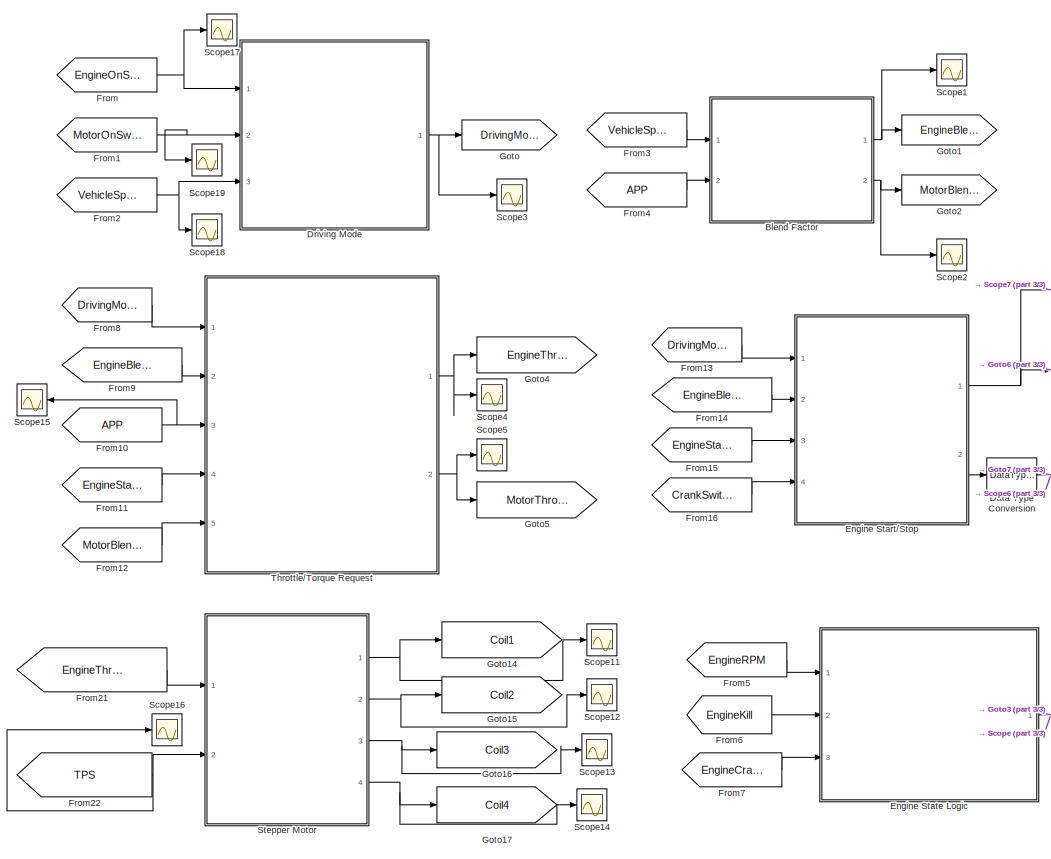
[diagram: root canvas - part 1/3, center side, full height]
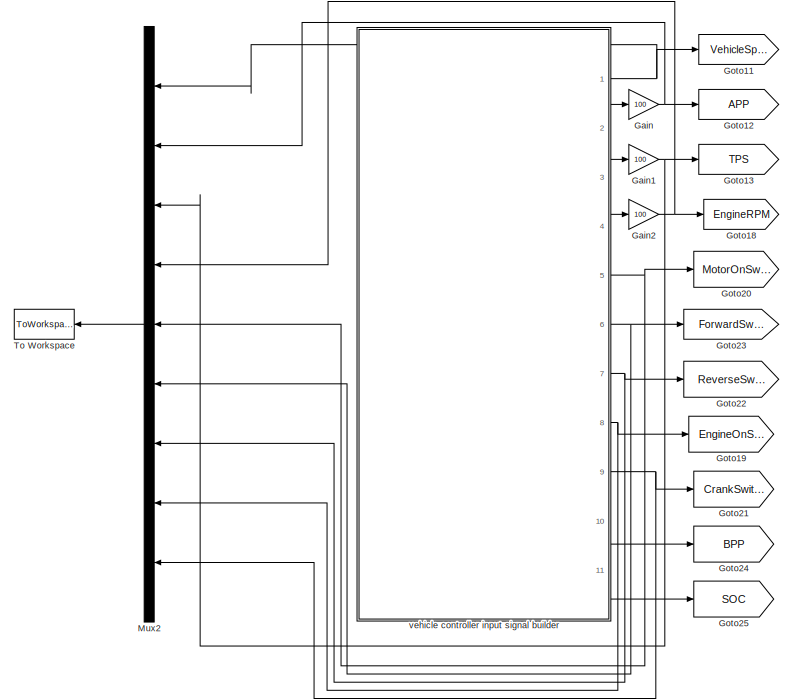
[diagram: root canvas - part 2/3, left side, full height]
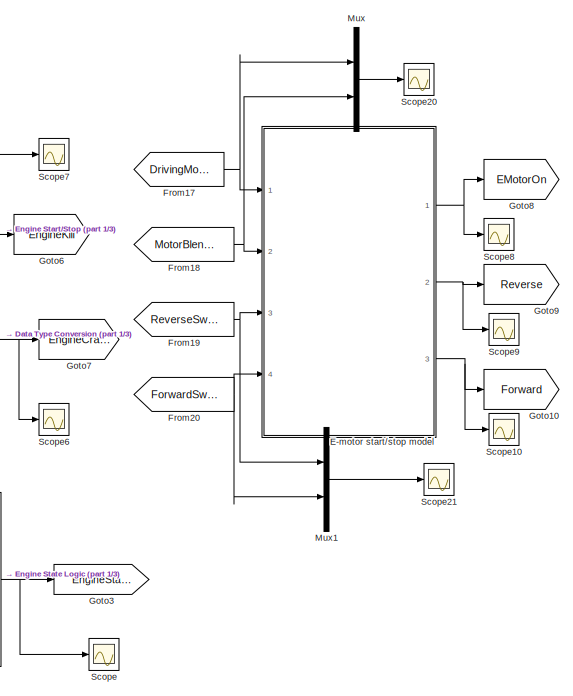
[diagram: root canvas - part 3/3, right side, full height]
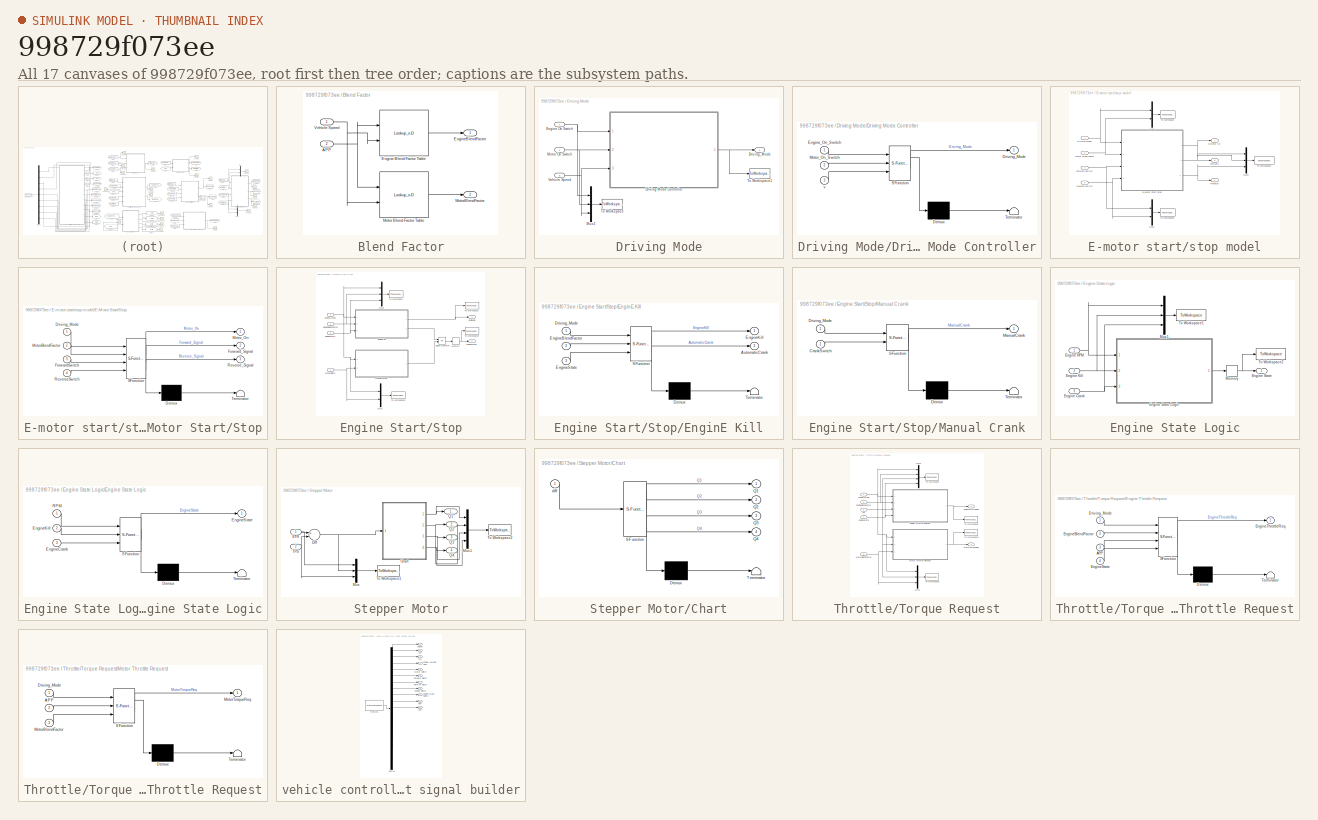
[diagram: thumbnail index - all 17 canvases of the model, root first then tree order]
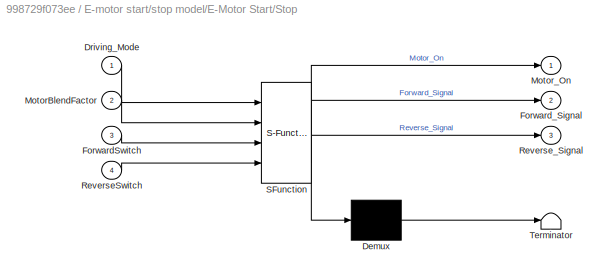
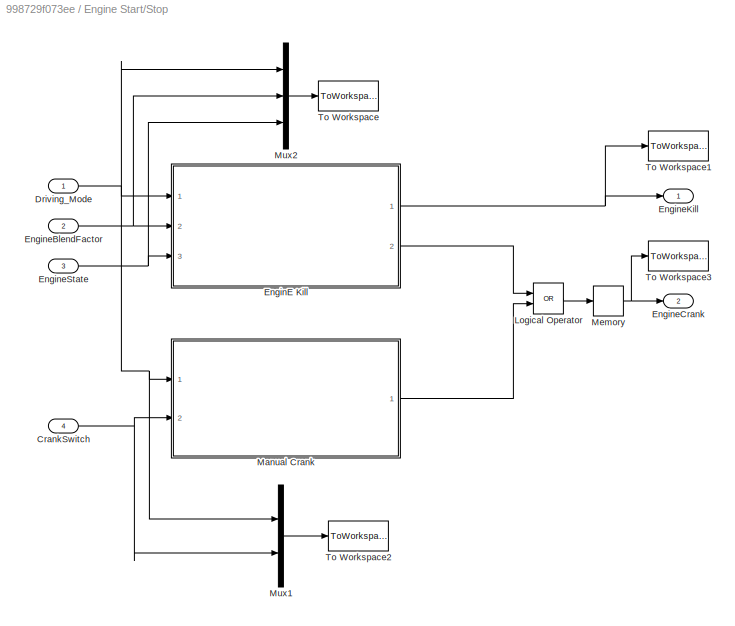
MODEL slx_998729f073ee
KIND model
CONFIG AbsTol = auto
CONFIG FixedStep = 0.1
CONFIG MaxStep = auto
CONFIG MinStep = auto
CONFIG RelTol = 1e-3
CONFIG SampleTimeConstraint = Unconstrained
CONFIG Solver = ode4
CONFIG SolverMode = Auto
CONFIG SolverName = ode4
CONFIG StartTime = 0.0
CONFIG StopTime = 200
BLOCK [SubSystem] Blend Factor
  Ports = [2, 2]
  RequestExecContextInheritance = off
  Variant = off
BLOCK [Inport] Blend Factor/APP
  IconDisplay = Port number
  Port = 2
BLOCK [Lookup_n-D] Blend Factor/Engine Blend Factor Table
  BreakpointsForDimension1 = v
  BreakpointsForDimension2 = x
  InternalRulePriority = Speed
  Ports = [2, 1]
  RndMeth = Simplest
  Table = engineblendfactormap
BLOCK [Outport] Blend Factor/EngineBlendFactor
  IconDisplay = Port number
BLOCK [Lookup_n-D] Blend Factor/Motor Blend Factor Table
  BreakpointsForDimension1 = v
  BreakpointsForDimension2 = x
  InternalRulePriority = Speed
  Ports = [2, 1]
  RndMeth = Simplest
  Table = motorblendfactormap
BLOCK [Outport] Blend Factor/MotorBlendFactor
  IconDisplay = Port number
  Port = 2
BLOCK [Inport] Blend Factor/Vehicle Speed
  IconDisplay = Port number
BLOCK [DataTypeConversion] Data Type Conversion
  OutDataTypeStr = double
  RndMeth = Floor
  SaturateOnIntegerOverflow = off
BLOCK [SubSystem] Driving Mode
  Ports = [3, 1]
  RequestExecContextInheritance = off
  Variant = off
BLOCK [SubSystem] Driving Mode/Driving Mode Controller
  ErrorFcn = Stateflow.Translate.translate
  PermitHierarchicalResolution = ExplicitOnly
  Ports = [3, 1]
  RequestExecContextInheritance = off
  SFBlockType = Chart
  TreatAsAtomicUnit = on
  Variant = off
BLOCK [Demux] Driving Mode/Driving Mode Controller/ Demux 
  Outputs = 1
  Ports = [1, 1]
BLOCK [S-Function] Driving Mode/Driving Mode Controller/ SFunction 
  EnableBusSupport = on
  FunctionName = sf_sfun
  PortCounts = [3 2]
  Ports = [3, 2]
  SFunctionDeploymentMode = off
  Tag = Stateflow S-Function UnmodifiedSimulinkModel 3
BLOCK [Terminator] Driving Mode/Driving Mode Controller/ Terminator 
BLOCK [Outport] Driving Mode/Driving Mode Controller/Driving_Mode
  IconDisplay = Port number
BLOCK [Inport] Driving Mode/Driving Mode Controller/Engine_On_Switch
  IconDisplay = Port number
BLOCK [Inport] Driving Mode/Driving Mode Controller/Motor_On_Switch
  IconDisplay = Port number
  Port = 2
BLOCK [Inport] Driving Mode/Driving Mode Controller/v
  IconDisplay = Port number
  Port = 3
BLOCK [Outport] Driving Mode/Driving_Mode
  IconDisplay = Port number
BLOCK [Inport] Driving Mode/Engine On Switch
  IconDisplay = Port number
BLOCK [Inport] Driving Mode/Motor On Switch
  IconDisplay = Port number
  Port = 2
BLOCK [Mux] Driving Mode/Mux2
  DisplayOption = bar
  Inputs = 3
  Ports = [3, 1]
BLOCK [ToWorkspace] Driving Mode/To Workspace
  FixptAsFi = on
  MaxDataPoints = inf
  Ports = [1]
  SampleTime = -1
  Save2DSignal = 3-D array (concatenate along third dimension)
  SaveFormat = Structure With Time
  VariableName = DM_Inputs
BLOCK [ToWorkspace] Driving Mode/To Workspace1
  FixptAsFi = on
  MaxDataPoints = inf
  Ports = [1]
  SampleTime = -1
  Save2DSignal = 3-D array (concatenate along third dimension)
  SaveFormat = Structure With Time
  VariableName = DM_Output
BLOCK [Inport] Driving Mode/Vehicle Speed
  IconDisplay = Port number
  Port = 3
BLOCK [SubSystem] E-motor start//stop model
  Ports = [4, 3]
  RequestExecContextInheritance = off
  Variant = off
BLOCK [Inport] E-motor start//stop model/Driving Mode
  IconDisplay = Port number
BLOCK [SubSystem] E-motor start//stop model/E-Motor Start//Stop
  ErrorFcn = Stateflow.Translate.translate
  PermitHierarchicalResolution = ExplicitOnly
  Ports = [4, 3]
  RequestExecContextInheritance = off
  SFBlockType = Chart
  TreatAsAtomicUnit = on
  Variant = off
BLOCK [Demux] E-motor start//stop model/E-Motor Start//Stop/ Demux 
  Outputs = 1
  Ports = [1, 1]
BLOCK [S-Function] E-motor start//stop model/E-Motor Start//Stop/ SFunction 
  EnableBusSupport = on
  FunctionName = sf_sfun
  PortCounts = [4 4]
  Ports = [4, 4]
  SFunctionDeploymentMode = off
  Tag = Stateflow S-Function UnmodifiedSimulinkModel 7
BLOCK [Terminator] E-motor start//stop model/E-Motor Start//Stop/ Terminator 
BLOCK [Inport] E-motor start//stop model/E-Motor Start//Stop/Driving_Mode
  IconDisplay = Port number
BLOCK [Inport] E-motor start//stop model/E-Motor Start//Stop/ForwardSwitch
  IconDisplay = Port number
  Port = 3
BLOCK [Outport] E-motor start//stop model/E-Motor Start//Stop/Forward_Signal
  IconDisplay = Port number
  Port = 2
BLOCK [Inport] E-motor start//stop model/E-Motor Start//Stop/MotorBlendFactor
  IconDisplay = Port number
  Port = 2
BLOCK [Outport] E-motor start//stop model/E-Motor Start//Stop/Motor_On
  IconDisplay = Port number
BLOCK [Inport] E-motor start//stop model/E-Motor Start//Stop/ReverseSwitch
  IconDisplay = Port number
  Port = 4
BLOCK [Outport] E-motor start//stop model/E-Motor Start//Stop/Reverse_Signal
  IconDisplay = Port number
  Port = 3
BLOCK [Outport] E-motor start//stop model/E-motor On
  IconDisplay = Port number
BLOCK [Outport] E-motor start//stop model/Forward
  IconDisplay = Port number
  Port = 3
BLOCK [Inport] E-motor start//stop model/Forward Switch
  IconDisplay = Port number
  Port = 4
BLOCK [Inport] E-motor start//stop model/Motor Blend Factor
  IconDisplay = Port number
  Port = 2
BLOCK [Mux] E-motor start//stop model/Mux1
  DisplayOption = bar
  Inputs = 2
  Ports = [2, 1]
BLOCK [Mux] E-motor start//stop model/Mux2
  DisplayOption = bar
  Inputs = 2
  Ports = [2, 1]
BLOCK [Mux] E-motor start//stop model/Mux3
  DisplayOption = bar
  Inputs = 3
  Ports = [3, 1]
BLOCK [Outport] E-motor start//stop model/Reverse
  IconDisplay = Port number
  Port = 2
BLOCK [Inport] E-motor start//stop model/Reverse Switch
  IconDisplay = Port number
  Port = 3
BLOCK [ToWorkspace] E-motor start//stop model/To Workspace
  FixptAsFi = on
  MaxDataPoints = inf
  Ports = [1]
  SampleTime = -1
  Save2DSignal = 3-D array (concatenate along third dimension)
  SaveFormat = Structure With Time
  VariableName = MSS_Inputs
BLOCK [ToWorkspace] E-motor start//stop model/To Workspace1
  FixptAsFi = on
  MaxDataPoints = inf
  Ports = [1]
  SampleTime = -1
  Save2DSignal = 3-D array (concatenate along third dimension)
  SaveFormat = Structure With Time
  VariableName = MSS_Switch
BLOCK [ToWorkspace] E-motor start//stop model/To Workspace2
  FixptAsFi = on
  MaxDataPoints = inf
  Ports = [1]
  SampleTime = -1
  Save2DSignal = 3-D array (concatenate along third dimension)
  SaveFormat = Structure With Time
  VariableName = MSS_Outputs
BLOCK [SubSystem] Engine Start//Stop
  Ports = [4, 2]
  RequestExecContextInheritance = off
  Variant = off
BLOCK [Inport] Engine Start//Stop/CrankSwitch
  IconDisplay = Port number
  Port = 4
BLOCK [Inport] Engine Start//Stop/Driving_Mode
  IconDisplay = Port number
BLOCK [SubSystem] Engine Start//Stop/EnginE Kill
  ErrorFcn = Stateflow.Translate.translate
  PermitHierarchicalResolution = ExplicitOnly
  Ports = [3, 2]
  RequestExecContextInheritance = off
  SFBlockType = Chart
  TreatAsAtomicUnit = on
  Variant = off
BLOCK [Demux] Engine Start//Stop/EnginE Kill/ Demux 
  Outputs = 1
  Ports = [1, 1]
BLOCK [S-Function] Engine Start//Stop/EnginE Kill/ SFunction 
  EnableBusSupport = on
  FunctionName = sf_sfun
  PortCounts = [3 3]
  Ports = [3, 3]
  SFunctionDeploymentMode = off
  Tag = Stateflow S-Function UnmodifiedSimulinkModel 5
BLOCK [Terminator] Engine Start//Stop/EnginE Kill/ Terminator 
BLOCK [Outport] Engine Start//Stop/EnginE Kill/AutomaticCrank
  IconDisplay = Port number
  Port = 2
BLOCK [Inport] Engine Start//Stop/EnginE Kill/Driving_Mode
  IconDisplay = Port number
BLOCK [Inport] Engine Start//Stop/EnginE Kill/EngineBlendFactor
  IconDisplay = Port number
  Port = 2
BLOCK [Outport] Engine Start//Stop/EnginE Kill/EngineKill
  IconDisplay = Port number
BLOCK [Inport] Engine Start//Stop/EnginE Kill/EngineState
  IconDisplay = Port number
  Port = 3
BLOCK [Inport] Engine Start//Stop/EngineBlendFactor
  IconDisplay = Port number
  Port = 2
BLOCK [Outport] Engine Start//Stop/EngineCrank
  IconDisplay = Port number
  Port = 2
BLOCK [Outport] Engine Start//Stop/EngineKill
  IconDisplay = Port number
BLOCK [Inport] Engine Start//Stop/EngineState
  IconDisplay = Port number
  Port = 3
BLOCK [Logic] Engine Start//Stop/Logical Operator
  AllPortsSameDT = off
  Operator = OR
  OutDataTypeStr = boolean
  Ports = [2, 1]
BLOCK [SubSystem] Engine Start//Stop/Manual Crank
  ErrorFcn = Stateflow.Translate.translate
  PermitHierarchicalResolution = ExplicitOnly
  Ports = [2, 1]
  RequestExecContextInheritance = off
  SFBlockType = Chart
  TreatAsAtomicUnit = on
  Variant = off
BLOCK [Demux] Engine Start//Stop/Manual Crank/ Demux 
  Outputs = 1
  Ports = [1, 1]
BLOCK [S-Function] Engine Start//Stop/Manual Crank/ SFunction 
  EnableBusSupport = on
  FunctionName = sf_sfun
  PortCounts = [2 2]
  Ports = [2, 2]
  SFunctionDeploymentMode = off
  Tag = Stateflow S-Function UnmodifiedSimulinkModel 6
BLOCK [Terminator] Engine Start//Stop/Manual Crank/ Terminator 
BLOCK [Inport] Engine Start//Stop/Manual Crank/CrankSwitch
  IconDisplay = Port number
  Port = 2
BLOCK [Inport] Engine Start//Stop/Manual Crank/Driving_Mode
  IconDisplay = Port number
BLOCK [Outport] Engine Start//Stop/Manual Crank/ManualCrank
  IconDisplay = Port number
BLOCK [Memory] Engine Start//Stop/Memory
  X0 = 1
BLOCK [Mux] Engine Start//Stop/Mux1
  DisplayOption = bar
  Inputs = 2
  Ports = [2, 1]
BLOCK [Mux] Engine Start//Stop/Mux2
  DisplayOption = bar
  Inputs = 3
  Ports = [3, 1]
BLOCK [ToWorkspace] Engine Start//Stop/To Workspace
  FixptAsFi = on
  MaxDataPoints = inf
  Ports = [1]
  SampleTime = -1
  Save2DSignal = 3-D array (concatenate along third dimension)
  SaveFormat = Structure With Time
  VariableName = EK_Inputs
BLOCK [ToWorkspace] Engine Start//Stop/To Workspace1
  FixptAsFi = on
  MaxDataPoints = inf
  Ports = [1]
  SampleTime = -1
  Save2DSignal = 3-D array (concatenate along third dimension)
  SaveFormat = Structure With Time
  VariableName = EK_Output
BLOCK [ToWorkspace] Engine Start//Stop/To Workspace2
  FixptAsFi = on
  MaxDataPoints = inf
  Ports = [1]
  SampleTime = -1
  Save2DSignal = 3-D array (concatenate along third dimension)
  SaveFormat = Structure With Time
  VariableName = MC_Inputs
BLOCK [ToWorkspace] Engine Start//Stop/To Workspace3
  FixptAsFi = on
  MaxDataPoints = inf
  Ports = [1]
  SampleTime = -1
  Save2DSignal = 3-D array (concatenate along third dimension)
  SaveFormat = Structure With Time
  VariableName = MC_Output
BLOCK [SubSystem] Engine State Logic
  Ports = [3, 1]
  RequestExecContextInheritance = off
  Variant = off
BLOCK [Inport] Engine State Logic/Engine Crank
  IconDisplay = Port number
  Port = 3
BLOCK [Inport] Engine State Logic/Engine Kill
  IconDisplay = Port number
  Port = 2
BLOCK [Inport] Engine State Logic/Engine RPM
  IconDisplay = Port number
BLOCK [Outport] Engine State Logic/Engine State
  IconDisplay = Port number
BLOCK [SubSystem] Engine State Logic/Engine State Logic
  ErrorFcn = Stateflow.Translate.translate
  PermitHierarchicalResolution = ExplicitOnly
  Ports = [3, 1]
  RequestExecContextInheritance = off
  SFBlockType = Chart
  TreatAsAtomicUnit = on
  Variant = off
BLOCK [Demux] Engine State Logic/Engine State Logic/ Demux 
  Outputs = 1
  Ports = [1, 1]
BLOCK [S-Function] Engine State Logic/Engine State Logic/ SFunction 
  EnableBusSupport = on
  FunctionName = sf_sfun
  PortCounts = [3 2]
  Ports = [3, 2]
  SFunctionDeploymentMode = off
  Tag = Stateflow S-Function UnmodifiedSimulinkModel 1
BLOCK [Terminator] Engine State Logic/Engine State Logic/ Terminator 
BLOCK [Inport] Engine State Logic/Engine State Logic/EngineCrank
  IconDisplay = Port number
  Port = 3
BLOCK [Inport] Engine State Logic/Engine State Logic/EngineKill
  IconDisplay = Port number
  Port = 2
BLOCK [Outport] Engine State Logic/Engine State Logic/EngineState
  IconDisplay = Port number
BLOCK [Inport] Engine State Logic/Engine State Logic/RPM
  IconDisplay = Port number
BLOCK [Memory] Engine State Logic/Memory
  X0 = 1
BLOCK [Mux] Engine State Logic/Mux1
  DisplayOption = bar
  Inputs = 3
  Ports = [3, 1]
BLOCK [ToWorkspace] Engine State Logic/To Workspace1
  FixptAsFi = on
  MaxDataPoints = inf
  Ports = [1]
  SampleTime = -1
  Save2DSignal = 3-D array (concatenate along third dimension)
  SaveFormat = Structure With Time
  VariableName = ES_Inputs
BLOCK [ToWorkspace] Engine State Logic/To Workspace2
  FixptAsFi = on
  MaxDataPoints = inf
  Ports = [1]
  SampleTime = -1
  Save2DSignal = 3-D array (concatenate along third dimension)
  SaveFormat = Structure With Time
  VariableName = ES_Output
BLOCK [From] From
  GotoTag = EngineOnSwitch
  IconDisplay = Tag and signal name
BLOCK [From] From1
  GotoTag = MotorOnSwitch
  IconDisplay = Tag and signal name
BLOCK [From] From10
  GotoTag = APP
  IconDisplay = Tag and signal name
BLOCK [From] From11
  GotoTag = EngineState
  TagVisibility = global
BLOCK [From] From12
  GotoTag = MotorBlendFactor
  TagVisibility = global
BLOCK [From] From13
  GotoTag = DrivingMode
  TagVisibility = global
BLOCK [From] From14
  GotoTag = EngineBlendFactor
  TagVisibility = global
BLOCK [From] From15
  GotoTag = EngineState
  TagVisibility = global
BLOCK [From] From16
  GotoTag = CrankSwitch
  IconDisplay = Tag and signal name
BLOCK [From] From17
  GotoTag = DrivingMode
  TagVisibility = global
BLOCK [From] From18
  GotoTag = MotorBlendFactor
  TagVisibility = global
BLOCK [From] From19
  GotoTag = ReverseSwitch
  IconDisplay = Tag and signal name
BLOCK [From] From2
  GotoTag = VehicleSpeed
  IconDisplay = Tag and signal name
BLOCK [From] From20
  GotoTag = ForwardSwitch
  IconDisplay = Tag and signal name
BLOCK [From] From21
  GotoTag = EngineThrottleReq
  TagVisibility = global
BLOCK [From] From22
  GotoTag = TPS
  IconDisplay = Tag and signal name
BLOCK [From] From3
  GotoTag = VehicleSpeed
  IconDisplay = Tag and signal name
BLOCK [From] From4
  GotoTag = APP
  IconDisplay = Tag and signal name
BLOCK [From] From5
  GotoTag = EngineRPM
  IconDisplay = Tag and signal name
BLOCK [From] From6
  GotoTag = EngineKill
BLOCK [From] From7
  GotoTag = EngineCrank
  IconDisplay = Tag and signal name
BLOCK [From] From8
  GotoTag = DrivingMode
  TagVisibility = global
BLOCK [From] From9
  GotoTag = EngineBlendFactor
  TagVisibility = global
BLOCK [Gain] Gain
  Gain = 100
  OutDataTypeStr = Inherit: Inherit via internal rule
  ParamDataTypeStr = Inherit: Inherit via internal rule
  SaturateOnIntegerOverflow = off
BLOCK [Gain] Gain1
  Gain = 100
  OutDataTypeStr = Inherit: Inherit via internal rule
  ParamDataTypeStr = Inherit: Inherit via internal rule
  SaturateOnIntegerOverflow = off
BLOCK [Gain] Gain2
  Gain = 100
  OutDataTypeStr = Inherit: Inherit via internal rule
  ParamDataTypeStr = Inherit: Inherit via internal rule
  SaturateOnIntegerOverflow = off
BLOCK [Goto] Goto
  GotoTag = DrivingMode
  TagVisibility = global
BLOCK [Goto] Goto1
  GotoTag = EngineBlendFactor
  TagVisibility = global
BLOCK [Goto] Goto10
  GotoTag = Forward
BLOCK [Goto] Goto11
  GotoTag = VehicleSpeed
BLOCK [Goto] Goto12
  GotoTag = APP
BLOCK [Goto] Goto13
  GotoTag = TPS
BLOCK [Goto] Goto14
  GotoTag = Coil1
  TagVisibility = global
BLOCK [Goto] Goto15
  GotoTag = Coil2
  TagVisibility = global
BLOCK [Goto] Goto16
  GotoTag = Coil3
  TagVisibility = global
BLOCK [Goto] Goto17
  GotoTag = Coil4
  TagVisibility = global
BLOCK [Goto] Goto18
  GotoTag = EngineRPM
BLOCK [Goto] Goto19
  GotoTag = EngineOnSwitch
BLOCK [Goto] Goto2
  GotoTag = MotorBlendFactor
  TagVisibility = global
BLOCK [Goto] Goto20
  GotoTag = MotorOnSwitch
BLOCK [Goto] Goto21
  GotoTag = CrankSwitch
BLOCK [Goto] Goto22
  GotoTag = ReverseSwitch
BLOCK [Goto] Goto23
  GotoTag = ForwardSwitch
BLOCK [Goto] Goto24
  GotoTag = BPP
BLOCK [Goto] Goto25
  GotoTag = SOC
BLOCK [Goto] Goto3
  GotoTag = EngineState
  TagVisibility = global
BLOCK [Goto] Goto4
  GotoTag = EngineThrottleReq
  TagVisibility = global
BLOCK [Goto] Goto5
  GotoTag = MotorThrottleReq
  TagVisibility = global
BLOCK [Goto] Goto6
  GotoTag = EngineKill
BLOCK [Goto] Goto7
  GotoTag = EngineCrank
BLOCK [Goto] Goto8
  GotoTag = EMotorOn
BLOCK [Goto] Goto9
  GotoTag = Reverse
BLOCK [Mux] Mux
  DisplayOption = bar
  Inputs = 2
  Ports = [2, 1]
BLOCK [Mux] Mux1
  DisplayOption = bar
  Inputs = 2
  Ports = [2, 1]
BLOCK [Mux] Mux2
  DisplayOption = bar
  Inputs = 9
  Ports = [9, 1]
BLOCK [Scope] Scope
  Ports = [1]
  ScopeSpecificationString = Simulink.scopes.TimeScopeBlockCfg('CurrentConfiguration', extmgr.ConfigurationSet(extmgr.Configuration('Core','General UI',true),extmgr.Configuration('Core','Source UI',true),extmgr.Configuration('Sources','WiredSimulink',true),extmgr.Configuration('Visuals','Time Domain',true,'SerializedDisplays',{struct('MinYLimReal','0.5','MaxYLimReal','5.5','YLabelReal','','MinYLimMag','0.5','MaxYLimMag','5.5'...<+1400ch>
BLOCK [Scope] Scope1
  Ports = [1]
  ScopeSpecificationString = Simulink.scopes.TimeScopeBlockCfg('CurrentConfiguration', extmgr.ConfigurationSet(extmgr.Configuration('Core','General UI',true),extmgr.Configuration('Core','Source UI',true),extmgr.Configuration('Sources','WiredSimulink',true,'DataLoggingVariableName','ScopeData1'),extmgr.Configuration('Visuals','Time Domain',true,'SerializedDisplays',{struct('MinYLimReal','-0.125','MaxYLimReal','1.125','YLabelRe...<+1403ch>
BLOCK [Scope] Scope10
  Ports = [1]
  ScopeSpecificationString = Simulink.scopes.TimeScopeBlockCfg('CurrentConfiguration', extmgr.ConfigurationSet(extmgr.Configuration('Core','General UI',true),extmgr.Configuration('Core','Source UI',true),extmgr.Configuration('Sources','WiredSimulink',true,'DataLoggingVariableName','ScopeData10'),extmgr.Configuration('Visuals','Time Domain',true,'SerializedDisplays',{struct('MinYLimReal','-0.125','MaxYLimReal','1.125','YLabelR...<+1442ch>
BLOCK [Scope] Scope11
  Ports = [1]
  ScopeSpecificationString = Simulink.scopes.TimeScopeBlockCfg('CurrentConfiguration', extmgr.ConfigurationSet(extmgr.Configuration('Core','General UI',true),extmgr.Configuration('Core','Source UI',true),extmgr.Configuration('Sources','WiredSimulink',true,'DataLoggingVariableName','ScopeData11'),extmgr.Configuration('Visuals','Time Domain',true,'SerializedDisplays',{struct('MinYLimReal','-0.125','MaxYLimReal','1.125','YLabelR...<+1444ch>
BLOCK [Scope] Scope12
  Ports = [1]
  ScopeSpecificationString = Simulink.scopes.TimeScopeBlockCfg('CurrentConfiguration', extmgr.ConfigurationSet(extmgr.Configuration('Core','General UI',true),extmgr.Configuration('Core','Source UI',true),extmgr.Configuration('Sources','WiredSimulink',true,'DataLoggingVariableName','ScopeData12'),extmgr.Configuration('Visuals','Time Domain',true,'SerializedDisplays',{struct('MinYLimReal','-0.125','MaxYLimReal','1.125','YLabelR...<+1404ch>
BLOCK [Scope] Scope13
  Ports = [1]
  ScopeSpecificationString = Simulink.scopes.TimeScopeBlockCfg('CurrentConfiguration', extmgr.ConfigurationSet(extmgr.Configuration('Core','General UI',true),extmgr.Configuration('Core','Source UI',true),extmgr.Configuration('Sources','WiredSimulink',true,'DataLoggingVariableName','ScopeData13'),extmgr.Configuration('Visuals','Time Domain',true,'SerializedDisplays',{struct('MinYLimReal','-0.125','MaxYLimReal','1.125','YLabelR...<+1404ch>
BLOCK [Scope] Scope14
  Ports = [1]
  ScopeSpecificationString = Simulink.scopes.TimeScopeBlockCfg('CurrentConfiguration', extmgr.ConfigurationSet(extmgr.Configuration('Core','General UI',true),extmgr.Configuration('Core','Source UI',true),extmgr.Configuration('Sources','WiredSimulink',true,'DataLoggingVariableName','ScopeData14'),extmgr.Configuration('Visuals','Time Domain',true,'SerializedDisplays',{struct('MinYLimReal','-0.125','MaxYLimReal','1.125','YLabelR...<+1419ch>
BLOCK [Scope] Scope15
  Ports = [1]
  ScopeSpecificationString = Simulink.scopes.TimeScopeBlockCfg('CurrentConfiguration', extmgr.ConfigurationSet(extmgr.Configuration('Core','General UI',true),extmgr.Configuration('Core','Source UI',true),extmgr.Configuration('Sources','WiredSimulink',true,'DataLoggingVariableName','ScopeData1'),extmgr.Configuration('Visuals','Time Domain',true,'SerializedDisplays',{struct('MinYLimReal','-10.00000','MaxYLimReal','90.00000','YL...<+1424ch>
BLOCK [Scope] Scope16
  Ports = [1]
  ScopeSpecificationString = Simulink.scopes.TimeScopeBlockCfg('CurrentConfiguration', extmgr.ConfigurationSet(extmgr.Configuration('Core','General UI',true),extmgr.Configuration('Core','Source UI',true),extmgr.Configuration('Sources','WiredSimulink',true,'DataLoggingVariableName','ScopeData2'),extmgr.Configuration('Visuals','Time Domain',true,'SerializedDisplays',{struct('MinYLimReal','-10.00000','MaxYLimReal','90.00000','YL...<+1370ch>
BLOCK [Scope] Scope17
  Ports = [1]
  ScopeSpecificationString = Simulink.scopes.TimeScopeBlockCfg('CurrentConfiguration', extmgr.ConfigurationSet(extmgr.Configuration('Core','General UI',true),extmgr.Configuration('Core','Source UI',true),extmgr.Configuration('Sources','WiredSimulink',true,'DataLoggingVariableName','ScopeData3'),extmgr.Configuration('Visuals','Time Domain',true,'SerializedDisplays',{struct('MinYLimReal','-0.125','MaxYLimReal','1.125','YLabelRe...<+1417ch>
BLOCK [Scope] Scope18
  Ports = [1]
  ScopeSpecificationString = Simulink.scopes.TimeScopeBlockCfg('CurrentConfiguration', extmgr.ConfigurationSet(extmgr.Configuration('Core','General UI',true),extmgr.Configuration('Core','Source UI',true),extmgr.Configuration('Sources','WiredSimulink',true,'DataLoggingVariableName','ScopeData4'),extmgr.Configuration('Visuals','Time Domain',true,'SerializedDisplays',{struct('MinYLimReal','-2.5','MaxYLimReal','22.5','YLabelReal'...<+1380ch>
BLOCK [Scope] Scope19
  Ports = [1]
  ScopeSpecificationString = Simulink.scopes.TimeScopeBlockCfg('CurrentConfiguration', extmgr.ConfigurationSet(extmgr.Configuration('Core','General UI',true),extmgr.Configuration('Core','Source UI',true),extmgr.Configuration('Sources','WiredSimulink',true,'DataLoggingVariableName','ScopeData5'),extmgr.Configuration('Visuals','Time Domain',true,'SerializedDisplays',{struct('MinYLimReal','-0.125','MaxYLimReal','1.125','YLabelRe...<+1417ch>
BLOCK [Scope] Scope2
  Ports = [1]
  ScopeSpecificationString = Simulink.scopes.TimeScopeBlockCfg('CurrentConfiguration', extmgr.ConfigurationSet(extmgr.Configuration('Core','General UI',true),extmgr.Configuration('Core','Source UI',true),extmgr.Configuration('Sources','WiredSimulink',true,'DataLoggingVariableName','ScopeData2'),extmgr.Configuration('Visuals','Time Domain',true,'SerializedDisplays',{struct('MinYLimReal','-0.125','MaxYLimReal','1.125','YLabelRe...<+1416ch>
BLOCK [Scope] Scope20
  Ports = [1]
  ScopeSpecificationString = Simulink.scopes.TimeScopeBlockCfg('CurrentConfiguration', extmgr.ConfigurationSet(extmgr.Configuration('Core','General UI',true),extmgr.Configuration('Core','Source UI',true),extmgr.Configuration('Sources','WiredSimulink',true,'DataLoggingVariableName','ScopeData6'),extmgr.Configuration('Visuals','Time Domain',true,'SerializedDisplays',{struct('MinYLimReal','-0.25','MaxYLimReal','2.25','YLabelReal...<+1425ch>
BLOCK [Scope] Scope21
  Ports = [1]
  ScopeSpecificationString = Simulink.scopes.TimeScopeBlockCfg('CurrentConfiguration', extmgr.ConfigurationSet(extmgr.Configuration('Core','General UI',true),extmgr.Configuration('Core','Source UI',true),extmgr.Configuration('Sources','WiredSimulink',true,'DataLoggingVariableName','ScopeData7'),extmgr.Configuration('Visuals','Time Domain',true,'SerializedDisplays',{struct('MinYLimReal','-0.125','MaxYLimReal','1.125','YLabelRe...<+1459ch>
BLOCK [Scope] Scope3
  Ports = [1]
  ScopeSpecificationString = Simulink.scopes.TimeScopeBlockCfg('CurrentConfiguration', extmgr.ConfigurationSet(extmgr.Configuration('Core','General UI',true),extmgr.Configuration('Core','Source UI',true),extmgr.Configuration('Sources','WiredSimulink',true,'DataLoggingVariableName','ScopeData3'),extmgr.Configuration('Visuals','Time Domain',true,'SerializedDisplays',{struct('MinYLimReal','-0.25','MaxYLimReal','2.25','YLabelReal...<+1405ch>
BLOCK [Scope] Scope4
  Ports = [1]
  ScopeSpecificationString = Simulink.scopes.TimeScopeBlockCfg('CurrentConfiguration', extmgr.ConfigurationSet(extmgr.Configuration('Core','General UI',true),extmgr.Configuration('Core','Source UI',true),extmgr.Configuration('Sources','WiredSimulink',true,'DataLoggingVariableName','ScopeData4'),extmgr.Configuration('Visuals','Time Domain',true,'SerializedDisplays',{struct('MinYLimReal','-10.00000','MaxYLimReal','90.00000','YL...<+1490ch>
BLOCK [Scope] Scope5
  Ports = [1]
  ScopeSpecificationString = Simulink.scopes.TimeScopeBlockCfg('CurrentConfiguration', extmgr.ConfigurationSet(extmgr.Configuration('Core','General UI',true),extmgr.Configuration('Core','Source UI',true),extmgr.Configuration('Sources','WiredSimulink',true,'DataLoggingVariableName','ScopeData5'),extmgr.Configuration('Visuals','Time Domain',true,'SerializedDisplays',{struct('MinYLimReal','-6.25','MaxYLimReal','56.25','YLabelRea...<+1438ch>
BLOCK [Scope] Scope6
  Ports = [1]
  ScopeSpecificationString = Simulink.scopes.TimeScopeBlockCfg('CurrentConfiguration', extmgr.ConfigurationSet(extmgr.Configuration('Core','General UI',true),extmgr.Configuration('Core','Source UI',true),extmgr.Configuration('Sources','WiredSimulink',true,'DataLoggingVariableName','ScopeData6'),extmgr.Configuration('Visuals','Time Domain',true,'SerializedDisplays',{struct('MinYLimReal','-0.125','MaxYLimReal','1.125','YLabelRe...<+1439ch>
BLOCK [Scope] Scope7
  Ports = [1]
  ScopeSpecificationString = Simulink.scopes.TimeScopeBlockCfg('CurrentConfiguration', extmgr.ConfigurationSet(extmgr.Configuration('Core','General UI',true),extmgr.Configuration('Core','Source UI',true),extmgr.Configuration('Sources','WiredSimulink',true,'DataLoggingVariableName','ScopeData7','DataLoggingLimitDataPoints',true,'DataLoggingSaveFormat','Array','DataLoggingDecimation','1','DataLoggingDecimateData',true),extmgr.C...<+1555ch>
BLOCK [Scope] Scope8
  Ports = [1]
  ScopeSpecificationString = Simulink.scopes.TimeScopeBlockCfg('CurrentConfiguration', extmgr.ConfigurationSet(extmgr.Configuration('Core','General UI',true),extmgr.Configuration('Core','Source UI',true),extmgr.Configuration('Sources','WiredSimulink',true,'DataLoggingVariableName','ScopeData8'),extmgr.Configuration('Visuals','Time Domain',true,'SerializedDisplays',{struct('MinYLimReal','-0.125','MaxYLimReal','1.125','YLabelRe...<+1435ch>
BLOCK [Scope] Scope9
  Ports = [1]
  ScopeSpecificationString = Simulink.scopes.TimeScopeBlockCfg('CurrentConfiguration', extmgr.ConfigurationSet(extmgr.Configuration('Core','General UI',true),extmgr.Configuration('Core','Source UI',true),extmgr.Configuration('Sources','WiredSimulink',true,'DataLoggingVariableName','ScopeData9'),extmgr.Configuration('Visuals','Time Domain',true,'SerializedDisplays',{struct('MinYLimReal','-0.125','MaxYLimReal','1.125','YLabelRe...<+1441ch>
BLOCK [SubSystem] Stepper Motor
  Ports = [2, 4]
  RequestExecContextInheritance = off
  Variant = off
BLOCK [SubSystem] Stepper Motor/Chart
  ErrorFcn = Stateflow.Translate.translate
  PermitHierarchicalResolution = ExplicitOnly
  Ports = [1, 4]
  RequestExecContextInheritance = off
  SFBlockType = Chart
  TreatAsAtomicUnit = on
  Variant = off
BLOCK [Demux] Stepper Motor/Chart/ Demux 
  Outputs = 1
  Ports = [1, 1]
BLOCK [S-Function] Stepper Motor/Chart/ SFunction 
  EnableBusSupport = on
  FunctionName = sf_sfun
  PortCounts = [1 5]
  Ports = [1, 5]
  SFunctionDeploymentMode = off
  Tag = Stateflow S-Function UnmodifiedSimulinkModel 9
BLOCK [Terminator] Stepper Motor/Chart/ Terminator 
BLOCK [Outport] Stepper Motor/Chart/Q1
  IconDisplay = Port number
BLOCK [Outport] Stepper Motor/Chart/Q2
  IconDisplay = Port number
  Port = 2
BLOCK [Outport] Stepper Motor/Chart/Q3
  IconDisplay = Port number
  Port = 3
BLOCK [Outport] Stepper Motor/Chart/Q4
  IconDisplay = Port number
  Port = 4
BLOCK [Inport] Stepper Motor/Chart/diff
  IconDisplay = Port number
BLOCK [Sum] Stepper Motor/Diff
  InputSameDT = off
  Inputs = +-
  OutDataTypeStr = Inherit: Inherit via internal rule
  Ports = [2, 1]
  SaturateOnIntegerOverflow = off
BLOCK [Inport] Stepper Motor/ETR
  IconDisplay = Port number
BLOCK [Mux] Stepper Motor/Mux
  DisplayOption = bar
  Inputs = 3
  Ports = [3, 1]
BLOCK [Mux] Stepper Motor/Mux1
  DisplayOption = bar
  Ports = [4, 1]
BLOCK [Outport] Stepper Motor/Q1
  IconDisplay = Port number
BLOCK [Outport] Stepper Motor/Q2
  IconDisplay = Port number
  Port = 2
BLOCK [Outport] Stepper Motor/Q3
  IconDisplay = Port number
  Port = 3
BLOCK [Outport] Stepper Motor/Q4
  IconDisplay = Port number
  Port = 4
BLOCK [Inport] Stepper Motor/TPS
  IconDisplay = Port number
  Port = 2
BLOCK [ToWorkspace] Stepper Motor/To Workspace1
  FixptAsFi = on
  MaxDataPoints = inf
  Ports = [1]
  SampleTime = -1
  Save2DSignal = 3-D array (concatenate along third dimension)
  SaveFormat = Structure With Time
  VariableName = SM_Inputs
BLOCK [ToWorkspace] Stepper Motor/To Workspace2
  FixptAsFi = on
  MaxDataPoints = inf
  Ports = [1]
  SampleTime = -1
  Save2DSignal = 3-D array (concatenate along third dimension)
  SaveFormat = Structure With Time
  VariableName = SM_Outputs
BLOCK [SubSystem] Throttle//Torque Request
  Ports = [5, 2]
  RequestExecContextInheritance = off
  Variant = off
BLOCK [Inport] Throttle//Torque Request/APP
  IconDisplay = Port number
  Port = 3
BLOCK [Inport] Throttle//Torque Request/Driving_Mode
  IconDisplay = Port number
BLOCK [SubSystem] Throttle//Torque Request/Engine Throttle Request
  ErrorFcn = Stateflow.Translate.translate
  PermitHierarchicalResolution = ExplicitOnly
  Ports = [4, 1]
  RequestExecContextInheritance = off
  SFBlockType = Chart
  TreatAsAtomicUnit = on
  Variant = off
BLOCK [Demux] Throttle//Torque Request/Engine Throttle Request/ Demux 
  Outputs = 1
  Ports = [1, 1]
BLOCK [S-Function] Throttle//Torque Request/Engine Throttle Request/ SFunction 
  EnableBusSupport = on
  FunctionName = sf_sfun
  PortCounts = [4 2]
  Ports = [4, 2]
  SFunctionDeploymentMode = off
  Tag = Stateflow S-Function UnmodifiedSimulinkModel 2
BLOCK [Terminator] Throttle//Torque Request/Engine Throttle Request/ Terminator 
BLOCK [Inport] Throttle//Torque Request/Engine Throttle Request/APP
  IconDisplay = Port number
  Port = 3
BLOCK [Inport] Throttle//Torque Request/Engine Throttle Request/Driving_Mode
  IconDisplay = Port number
BLOCK [Inport] Throttle//Torque Request/Engine Throttle Request/EngineBlendFactor
  IconDisplay = Port number
  Port = 2
BLOCK [Inport] Throttle//Torque Request/Engine Throttle Request/EngineState
  IconDisplay = Port number
  Port = 4
BLOCK [Outport] Throttle//Torque Request/Engine Throttle Request/EngineThrottleReq
  IconDisplay = Port number
BLOCK [Inport] Throttle//Torque Request/EngineBlendFactor
  IconDisplay = Port number
  Port = 2
BLOCK [Inport] Throttle//Torque Request/EngineState
  IconDisplay = Port number
  Port = 4
BLOCK [Outport] Throttle//Torque Request/EngineThrottleReq
  IconDisplay = Port number
BLOCK [SubSystem] Throttle//Torque Request/Motor Throttle Request
  ErrorFcn = Stateflow.Translate.translate
  PermitHierarchicalResolution = ExplicitOnly
  Ports = [3, 1]
  RequestExecContextInheritance = off
  SFBlockType = Chart
  TreatAsAtomicUnit = on
  Variant = off
BLOCK [Demux] Throttle//Torque Request/Motor Throttle Request/ Demux 
  Outputs = 1
  Ports = [1, 1]
BLOCK [S-Function] Throttle//Torque Request/Motor Throttle Request/ SFunction 
  EnableBusSupport = on
  FunctionName = sf_sfun
  PortCounts = [3 2]
  Ports = [3, 2]
  SFunctionDeploymentMode = off
  Tag = Stateflow S-Function UnmodifiedSimulinkModel 4
BLOCK [Terminator] Throttle//Torque Request/Motor Throttle Request/ Terminator 
BLOCK [Inport] Throttle//Torque Request/Motor Throttle Request/APP
  IconDisplay = Port number
  Port = 2
BLOCK [Inport] Throttle//Torque Request/Motor Throttle Request/Driving_Mode
  IconDisplay = Port number
BLOCK [Inport] Throttle//Torque Request/Motor Throttle Request/MotorBlendFactor
  IconDisplay = Port number
  Port = 3
BLOCK [Outport] Throttle//Torque Request/Motor Throttle Request/MotorTorqueReq
  IconDisplay = Port number
BLOCK [Inport] Throttle//Torque Request/MotorBlendFactor
  IconDisplay = Port number
  Port = 5
BLOCK [Outport] Throttle//Torque Request/MotorTorqueReq
  IconDisplay = Port number
  Port = 2
BLOCK [Mux] Throttle//Torque Request/Mux1
  DisplayOption = bar
  Inputs = 3
  Ports = [3, 1]
BLOCK [Mux] Throttle//Torque Request/Mux2
  DisplayOption = bar
  Ports = [4, 1]
BLOCK [ToWorkspace] Throttle//Torque Request/To Workspace
  FixptAsFi = on
  MaxDataPoints = inf
  Ports = [1]
  SampleTime = -1
  Save2DSignal = 3-D array (concatenate along third dimension)
  SaveFormat = Structure With Time
  VariableName = ETR_Inputs
BLOCK [ToWorkspace] Throttle//Torque Request/To Workspace1
  FixptAsFi = on
  MaxDataPoints = inf
  Ports = [1]
  SampleTime = -1
  Save2DSignal = 3-D array (concatenate along third dimension)
  SaveFormat = Structure With Time
  VariableName = MTR_Inputs
BLOCK [ToWorkspace] Throttle//Torque Request/To Workspace2
  FixptAsFi = on
  MaxDataPoints = inf
  Ports = [1]
  SampleTime = -1
  Save2DSignal = 3-D array (concatenate along third dimension)
  SaveFormat = Structure With Time
  VariableName = ETR_Output
BLOCK [ToWorkspace] Throttle//Torque Request/To Workspace3
  FixptAsFi = on
  MaxDataPoints = inf
  Ports = [1]
  SampleTime = -1
  Save2DSignal = 3-D array (concatenate along third dimension)
  SaveFormat = Structure With Time
  VariableName = MTR_Output
BLOCK [ToWorkspace] To Workspace
  FixptAsFi = on
  MaxDataPoints = inf
  Ports = [1]
  SampleTime = -1
  Save2DSignal = 3-D array (concatenate along third dimension)
  SaveFormat = Structure With Time
  VariableName = Signal_Inputs
BLOCK [SubSystem] vehicle controller input signal builder
  ClipboardFcn = sigbuilder_block('clipboard');
  CloseFcn = sigbuilder_block('close');
  ContinueFcn = sigbuilder_block('continue')
  CopyFcn = sigbuilder_block('copy');
  DeleteFcn = sigbuilder_block('delete');
  LoadFcn = sigbuilder_block('load');
  MaskHideContents = on
  ModelCloseFcn = sigbuilder_block('modelClose');
  NameChangeFcn = sigbuilder_block('namechange');
  OpenFcn = sigbuilder_block('open',[0 30 960 455.5 ]);
  PauseFcn = sigbuilder_block('pause')
  Ports = [0, 11]
  PreSaveFcn = sigbuilder_block('preSave');
  RequestExecContextInheritance = off
  StartFcn = sigbuilder_block('start');
  StopFcn = sigbuilder_block('stop');
  Tag = STV Subsys
  Variant = off
BLOCK [Outport] vehicle controller input signal builder/APP
  IconDisplay = Port number
  Port = 2
  Tag = STV Outport
BLOCK [Outport] vehicle controller input signal builder/BPP
  IconDisplay = Port number
  Port = 10
  Tag = STV Outport
BLOCK [Demux] vehicle controller input signal builder/Demux
  Outputs = 11
  Ports = [1, 11]
  Tag = STV Demux
BLOCK [Outport] vehicle controller input signal builder/Engine Average RPM
  IconDisplay = Port number
  Port = 4
  Tag = STV Outport
BLOCK [Outport] vehicle controller input signal builder/Engine Crank Switch
  IconDisplay = Port number
  Port = 9
  Tag = STV Outport
BLOCK [Outport] vehicle controller input signal builder/Engine Switch
  IconDisplay = Port number
  Port = 8
  Tag = STV Outport
BLOCK [Outport] vehicle controller input signal builder/Forward Switch
  IconDisplay = Port number
  Port = 6
  Tag = STV Outport
BLOCK [FromWorkspace] vehicle controller input signal builder/FromWs
  SampleTime = 0
  Tag = STV FromWs
  VariableName = tuvar
  ZeroCross = on
BLOCK [Outport] vehicle controller input signal builder/Motor Switch
  IconDisplay = Port number
  Port = 5
  Tag = STV Outport
BLOCK [Outport] vehicle controller input signal builder/Reverse Switch
  IconDisplay = Port number
  Port = 7
  Tag = STV Outport
BLOCK [Outport] vehicle controller input signal builder/SOC
  IconDisplay = Port number
  Port = 11
  Tag = STV Outport
BLOCK [Outport] vehicle controller input signal builder/TPS
  IconDisplay = Port number
  Port = 3
  Tag = STV Outport
BLOCK [Outport] vehicle controller input signal builder/Velocity
  IconDisplay = Port number
  Tag = STV Outport
NET Blend Factor/APP:1 -> Blend Factor/Engine Blend Factor Table:1, Blend Factor/Motor Blend Factor Table:1
LINE Blend Factor/Engine Blend Factor Table:1 -> Blend Factor/EngineBlendFactor:1
LINE Blend Factor/Motor Blend Factor Table:1 -> Blend Factor/MotorBlendFactor:1
NET Blend Factor/Vehicle Speed:1 -> Blend Factor/Engine Blend Factor Table:2, Blend Factor/Motor Blend Factor Table:2
NET Blend Factor:1 -> Goto1:1, Scope1:1
NET Blend Factor:2 -> Goto2:1, Scope2:1
NET Data Type Conversion:1 -> Goto7:1, Scope6:1
NET Driving Mode/Driving Mode Controller:1 -> Driving Mode/Driving_Mode:1, Driving Mode/To Workspace1:1
NET Driving Mode/Engine On Switch:1 -> Driving Mode/Driving Mode Controller:1, Driving Mode/Mux2:1
NET Driving Mode/Motor On Switch:1 -> Driving Mode/Driving Mode Controller:2, Driving Mode/Mux2:2
LINE Driving Mode/Mux2:1 -> Driving Mode/To Workspace:1
NET Driving Mode/Vehicle Speed:1 -> Driving Mode/Driving Mode Controller:3, Driving Mode/Mux2:3
NET Driving Mode:1 -> Goto:1, Scope3:1
NET E-motor start//stop model/Driving Mode:1 -> E-motor start//stop model/E-Motor Start//Stop:1, E-motor start//stop model/Mux2:1
NET E-motor start//stop model/E-Motor Start//Stop:1 -> E-motor start//stop model/E-motor On:1, E-motor start//stop model/Mux3:1
NET E-motor start//stop model/E-Motor Start//Stop:2 -> E-motor start//stop model/Forward:1, E-motor start//stop model/Mux3:2
NET E-motor start//stop model/E-Motor Start//Stop:3 -> E-motor start//stop model/Mux3:3, E-motor start//stop model/Reverse:1
NET E-motor start//stop model/Forward Switch:1 -> E-motor start//stop model/E-Motor Start//Stop:3, E-motor start//stop model/Mux1:1
NET E-motor start//stop model/Motor Blend Factor:1 -> E-motor start//stop model/E-Motor Start//Stop:2, E-motor start//stop model/Mux2:2
LINE E-motor start//stop model/Mux1:1 -> E-motor start//stop model/To Workspace1:1
LINE E-motor start//stop model/Mux2:1 -> E-motor start//stop model/To Workspace:1
LINE E-motor start//stop model/Mux3:1 -> E-motor start//stop model/To Workspace2:1
NET E-motor start//stop model/Reverse Switch:1 -> E-motor start//stop model/E-Motor Start//Stop:4, E-motor start//stop model/Mux1:2
NET E-motor start//stop model:1 -> Goto8:1, Scope8:1
NET E-motor start//stop model:2 -> Goto9:1, Scope9:1
NET E-motor start//stop model:3 -> Goto10:1, Scope10:1
NET Engine Start//Stop/CrankSwitch:1 -> Engine Start//Stop/Manual Crank:2, Engine Start//Stop/Mux1:2
NET Engine Start//Stop/Driving_Mode:1 -> Engine Start//Stop/EnginE Kill:1, Engine Start//Stop/Manual Crank:1, Engine Start//Stop/Mux1:1, Engine Start//Stop/Mux2:1
NET Engine Start//Stop/EnginE Kill:1 -> Engine Start//Stop/EngineKill:1, Engine Start//Stop/To Workspace1:1
LINE Engine Start//Stop/EnginE Kill:2 -> Engine Start//Stop/Logical Operator:1
NET Engine Start//Stop/EngineBlendFactor:1 -> Engine Start//Stop/EnginE Kill:2, Engine Start//Stop/Mux2:2
NET Engine Start//Stop/EngineState:1 -> Engine Start//Stop/EnginE Kill:3, Engine Start//Stop/Mux2:3
LINE Engine Start//Stop/Logical Operator:1 -> Engine Start//Stop/Memory:1
LINE Engine Start//Stop/Manual Crank:1 -> Engine Start//Stop/Logical Operator:2
NET Engine Start//Stop/Memory:1 -> Engine Start//Stop/EngineCrank:1, Engine Start//Stop/To Workspace3:1
LINE Engine Start//Stop/Mux1:1 -> Engine Start//Stop/To Workspace2:1
LINE Engine Start//Stop/Mux2:1 -> Engine Start//Stop/To Workspace:1
NET Engine Start//Stop:1 -> Goto6:1, Scope7:1
LINE Engine Start//Stop:2 -> Data Type Conversion:1
NET Engine State Logic/Engine Crank:1 -> Engine State Logic/Engine State Logic:3, Engine State Logic/Mux1:3
NET Engine State Logic/Engine Kill:1 -> Engine State Logic/Engine State Logic:2, Engine State Logic/Mux1:2
NET Engine State Logic/Engine RPM:1 -> Engine State Logic/Engine State Logic:1, Engine State Logic/Mux1:1
LINE Engine State Logic/Engine State Logic:1 -> Engine State Logic/Memory:1
NET Engine State Logic/Memory:1 -> Engine State Logic/Engine State:1, Engine State Logic/To Workspace2:1
LINE Engine State Logic/Mux1:1 -> Engine State Logic/To Workspace1:1
NET Engine State Logic:1 -> Goto3:1, Scope:1
NET From10:1 -> Scope15:1, Throttle//Torque Request:3
LINE From11:1 -> Throttle//Torque Request:4
LINE From12:1 -> Throttle//Torque Request:5
LINE From13:1 -> Engine Start//Stop:1
LINE From14:1 -> Engine Start//Stop:2
LINE From15:1 -> Engine Start//Stop:3
LINE From16:1 -> Engine Start//Stop:4
NET From17:1 -> E-motor start//stop model:1, Mux:1
NET From18:1 -> E-motor start//stop model:2, Mux:2
NET From19:1 -> E-motor start//stop model:3, Mux1:1
NET From1:1 -> Driving Mode:2, Scope19:1
NET From20:1 -> E-motor start//stop model:4, Mux1:2
LINE From21:1 -> Stepper Motor:1
NET From22:1 -> Scope16:1, Stepper Motor:2
NET From2:1 -> Driving Mode:3, Scope18:1
LINE From3:1 -> Blend Factor:1
LINE From4:1 -> Blend Factor:2
LINE From5:1 -> Engine State Logic:1
LINE From6:1 -> Engine State Logic:2
LINE From7:1 -> Engine State Logic:3
LINE From8:1 -> Throttle//Torque Request:1
LINE From9:1 -> Throttle//Torque Request:2
NET From:1 -> Driving Mode:1, Scope17:1
NET Gain1:1 -> Goto13:1, Mux2:3
NET Gain2:1 -> Goto18:1, Mux2:4
NET Gain:1 -> Goto12:1, Mux2:2
LINE Mux1:1 -> Scope21:1
LINE Mux2:1 -> To Workspace:1
LINE Mux:1 -> Scope20:1
NET Stepper Motor/Chart:1 -> Stepper Motor/Mux1:1, Stepper Motor/Q1:1
NET Stepper Motor/Chart:2 -> Stepper Motor/Mux1:2, Stepper Motor/Q2:1
NET Stepper Motor/Chart:3 -> Stepper Motor/Mux1:3, Stepper Motor/Q3:1
NET Stepper Motor/Chart:4 -> Stepper Motor/Mux1:4, Stepper Motor/Q4:1
NET Stepper Motor/Diff:1 -> Stepper Motor/Chart:1, Stepper Motor/Mux:2
NET Stepper Motor/ETR:1 -> Stepper Motor/Diff:1, Stepper Motor/Mux:1
LINE Stepper Motor/Mux1:1 -> Stepper Motor/To Workspace2:1
LINE Stepper Motor/Mux:1 -> Stepper Motor/To Workspace1:1
NET Stepper Motor/TPS:1 -> Stepper Motor/Diff:2, Stepper Motor/Mux:3
NET Stepper Motor:1 -> Goto14:1, Scope11:1
NET Stepper Motor:2 -> Goto15:1, Scope12:1
NET Stepper Motor:3 -> Goto16:1, Scope13:1
NET Stepper Motor:4 -> Goto17:1, Scope14:1
NET Throttle//Torque Request/APP:1 -> Throttle//Torque Request/Engine Throttle Request:3, Throttle//Torque Request/Motor Throttle Request:2, Throttle//Torque Request/Mux1:2, Throttle//Torque Request/Mux2:3
NET Throttle//Torque Request/Driving_Mode:1 -> Throttle//Torque Request/Engine Throttle Request:1, Throttle//Torque Request/Motor Throttle Request:1, Throttle//Torque Request/Mux1:1, Throttle//Torque Request/Mux2:1
NET Throttle//Torque Request/Engine Throttle Request:1 -> Throttle//Torque Request/EngineThrottleReq:1, Throttle//Torque Request/To Workspace2:1
NET Throttle//Torque Request/EngineBlendFactor:1 -> Throttle//Torque Request/Engine Throttle Request:2, Throttle//Torque Request/Mux2:2
NET Throttle//Torque Request/EngineState:1 -> Throttle//Torque Request/Engine Throttle Request:4, Throttle//Torque Request/Mux2:4
NET Throttle//Torque Request/Motor Throttle Request:1 -> Throttle//Torque Request/MotorTorqueReq:1, Throttle//Torque Request/To Workspace3:1
NET Throttle//Torque Request/MotorBlendFactor:1 -> Throttle//Torque Request/Motor Throttle Request:3, Throttle//Torque Request/Mux1:3
LINE Throttle//Torque Request/Mux1:1 -> Throttle//Torque Request/To Workspace1:1
LINE Throttle//Torque Request/Mux2:1 -> Throttle//Torque Request/To Workspace:1
NET Throttle//Torque Request:1 -> Goto4:1, Scope4:1
NET Throttle//Torque Request:2 -> Goto5:1, Scope5:1
NET vehicle controller input signal builder:1 -> Goto11:1, Mux2:1
LINE vehicle controller input signal builder:10 -> Goto24:1
LINE vehicle controller input signal builder:11 -> Goto25:1
LINE vehicle controller input signal builder:2 -> Gain:1
LINE vehicle controller input signal builder:3 -> Gain1:1
LINE vehicle controller input signal builder:4 -> Gain2:1
NET vehicle controller input signal builder:5 -> Goto20:1, Mux2:5
NET vehicle controller input signal builder:6 -> Goto23:1, Mux2:6
NET vehicle controller input signal builder:7 -> Goto22:1, Mux2:7
NET vehicle controller input signal builder:8 -> Goto19:1, Mux2:8
NET vehicle controller input signal builder:9 -> Goto21:1, Mux2:9
note: NET lines group one-source signal fan-out (src -> all destinations, sorted); 1:1 wires keep LINE
CHART Engine State Logic/Engine State Logic states=5 transitions=8
  STATE_LABEL 'EngineCrankState\nen,du:\nEngineState=2;\nEngineCrankTime=temporalCount(sec);\n'
  STATE_LABEL 'EngineOff\nen:EngineState=1;\n'
  STATE_LABEL 'EngineStartFail\nen:EngineState=5;'
  STATE_LABEL 'EngineOn\nen:EngineState=4;'
  STATE_LABEL 'EngineWarmup\nen,du:\nEngineState=3;\nEngineWarmUpTime=temporalCount(sec);'
CHART Throttle//Torque Request/Engine Throttle
Request states=5 transitions=12
  STATE_LABEL 'ElectricSolo\ndu:EngineThrottleReq=0;\n'
  STATE_LABEL 'BlendingMode'
  STATE_LABEL 'EngineState23\nen,du:\nEngineThrottleReq=7.5;'
  STATE_LABEL 'OtherStates\nen,du:\nEngineThrottleReq=APP*EngineBlendFactor;'
  STATE_LABEL '[EngineState~=2||EngineState~=3]'
  STATE_LABEL '[EngineState==2||EngineState==3]'
  STATE_LABEL '[EngineState~=2||EngineState~=3]'
  STATE_LABEL '[EngineState==2||EngineState==3]'
  STATE_LABEL 'EngineState23\nen,du:\nEngineThrottleReq=7.5;'
  STATE_LABEL 'OtherStates\nen,du:\nEngineThrottleReq=APP*EngineBlendFactor;'
  STATE_LABEL 'EngineSole\ndu:EngineThrottleReq=APP;'
CHART Driving Mode/Driving Mode Controller states=5 transitions=10
  STATE_LABEL 'DM'
  STATE_LABEL 'EngineSolo\ndu:Driving_Mode=3;'
  STATE_LABEL 'BlendingMode\ndu:Driving_Mode=2;'
  STATE_LABEL 'ElectricSolo\ndu:Driving_Mode=1;'
  STATE_LABEL '[Engine_On_Switch==0||Motor_On_Switch==1]'
  STATE_LABEL '[Engine_On_Switch==1&&Motor_On_Switch==0&&v<1]'
  STATE_LABEL '[Engine_On_Switch==0&&Motor_On_Switch==1&&v<1]'
  STATE_LABEL '[Engine_On_Switch==1||Motor_On_Switch==1]'
  STATE_LABEL '[Engine_On_Switch==0&&Motor_On_Switch==0&&v<1]'
  STATE_LABEL '[Engine_On_Switch==1||Motor_On_Switch==0]'
  STATE_LABEL 'EngineSolo\ndu:Driving_Mode=3;'
  STATE_LABEL 'BlendingMode\ndu:Driving_Mode=2;'
  STATE_LABEL 'ElectricSolo\ndu:Driving_Mode=1;'
  STATE_LABEL 'Nothing'
CHART Throttle//Torque Request/Motor Throttle Request states=3 transitions=7
  STATE_LABEL 'EngineSolo\ndu:MotorTorqueReq=0;'
  STATE_LABEL 'BlendingMode\ndu:MotorTorqueReq=APP*MotorBlendFactor;'
  STATE_LABEL 'ElectricSolo\ndu:MotorTorqueReq=APP;'
CHART Engine Start//Stop/EnginE Kill states=7 transitions=15
  STATE_LABEL 'EngineSolo\ndu:EngineKill=0;AutomaticCrank=0;'
  STATE_LABEL 'BlendingMode\n'
  STATE_LABEL 'a\ndu:EngineKill=0;'
  STATE_LABEL 'c\ndu:AutomaticCrank=1;'
  STATE_LABEL 'c1\ndu:AutomaticCrank=0;'
  STATE_LABEL '[EngineState==1]'
  STATE_LABEL '[EngineState~=1]\n\n'
  STATE_LABEL 'b\ndu:EngineKill=1;AutomaticCrank=0;'
  STATE_LABEL '[EngineBlendFactor>0.01]'
  STATE_LABEL '[EngineBlendFactor<=0.01]'
  STATE_LABEL '[EngineBlendFactor>0.01]'
  STATE_LABEL '[EngineBlendFactor<=0.01]'
  STATE_LABEL 'a\ndu:EngineKill=0;'
  STATE_LABEL 'c\ndu:AutomaticCrank=1;'
  STATE_LABEL 'c1\ndu:AutomaticCrank=0;'
  STATE_LABEL '[EngineState==1]'
  STATE_LABEL '[EngineState~=1]\n\n'
  STATE_LABEL 'c\ndu:AutomaticCrank=1;'
  STATE_LABEL 'c1\ndu:AutomaticCrank=0;'
  STATE_LABEL 'b\ndu:EngineKill=1;AutomaticCrank=0;'
  STATE_LABEL 'ElectricSolo\ndu:EngineKill=1;AutomaticCrank=0;'
CHART Engine Start//Stop/Manual Crank states=5 transitions=12
  STATE_LABEL 'ElectricSolo\ndu:ManualCrank=0;'
  STATE_LABEL 'EngineSolo\n'
  STATE_LABEL 'On\ndu:ManualCrank=1;'
  STATE_LABEL 'Off\ndu:ManualCrank=0;'
  STATE_LABEL '[CrankSwitch==1]'
  STATE_LABEL '[CrankSwitch==0]'
  STATE_LABEL '[CrankSwitch~=0]'
  STATE_LABEL '[CrankSwitch~=1]'
  STATE_LABEL 'On\ndu:ManualCrank=1;'
  STATE_LABEL 'Off\ndu:ManualCrank=0;'
  STATE_LABEL 'BlendingMode\ndu:ManualCrank=0;'
CHART E-motor start//stop model/E-Motor Start//Stop states=5 transitions=12
  STATE_LABEL 'BlendingMode'
  STATE_LABEL 'B2\ndu:Motor_On=0;\ndu:Forward_Signal=1;\ndu:Reverse_Signal=0;'
  STATE_LABEL 'B1\ndu:Motor_On=1;\ndu:Forward_Signal=1;\ndu:Reverse_Signal=0;'
  STATE_LABEL '[MotorBlendFactor<=0.01]'
  STATE_LABEL '[MotorBlendFactor>0.01]'
  STATE_LABEL '[MotorBlendFactor<=0.01]'
  STATE_LABEL '[MotorBlendFactor>0.01]'
  STATE_LABEL 'B2\ndu:Motor_On=0;\ndu:Forward_Signal=1;\ndu:Reverse_Signal=0;'
  STATE_LABEL 'B1\ndu:Motor_On=1;\ndu:Forward_Signal=1;\ndu:Reverse_Signal=0;'
  STATE_LABEL 'ElectricSolo\ndu:Motor_On=1;\ndu:Forward_Signal=ForwardSwitch;\ndu:Reverse_Signal=ReverseSwitch;'
  STATE_LABEL 'EngineSolo\ndu:Motor_On=0;\ndu:Forward_Signal=0;\ndu:Reverse_Signal=0;'
CHART Stepper Motor/Chart states=10 transitions=22
  STATE_LABEL 'On'
  STATE_LABEL 'Step3\nen:Q1=1;\nQ2=0;\nQ3=0;\nQ4=1;'
  STATE_LABEL 'Step4\nen:Q1=0;\nQ2=0;\nQ3=0;\nQ4=1;'
  STATE_LABEL 'Step2\nen:Q1=1;\nQ2=0;\nQ3=0;\nQ4=0;'
  STATE_LABEL 'Step1\nen:Q1=1;\nQ2=0;\nQ3=1;\nQ4=0;'
  STATE_LABEL 'Step5\nen:Q1=0;\nQ2=1;\nQ3=0;\nQ4=1;'
  STATE_LABEL 'Step8\nen:Q1=0;\nQ2=0;\nQ3=1;\nQ4=0;'
  STATE_LABEL 'Step7\nen:Q1=0;\nQ2=1;\nQ3=1;\nQ4=0;'
  STATE_LABEL 'Step6\nen:Q1=0;\nQ2=1;\nQ3=0;\nQ4=0;'
  STATE_LABEL '[after(10,msec)&&diff<=-1]'
  STATE_LABEL '[after(10,msec)&&diff>=1]'
  STATE_LABEL '[after(10,msec)&&diff>=1]'
  STATE_LABEL '[after(10,msec)&&diff>=1]'
  STATE_LABEL '[after(10,msec)&&diff<=-1]'
  STATE_LABEL '[after(10,msec)&&diff<=-1]'
  STATE_LABEL '[after(10,msec)&&diff>=1]'
  STATE_LABEL '[after(10,msec)&&diff<=-1]'
  STATE_LABEL '[after(10,msec)&&diff<=-1]'
  STATE_LABEL '[diff>=1]'
  STATE_LABEL '[after(10,msec)&&diff<=-1]'
  STATE_LABEL '[after(10,msec)&&diff>=1]'
  STATE_LABEL '[after(10,msec)&&diff>=1]'
  STATE_LABEL '[diff<=-1]'
  STATE_LABEL '[after(10,msec)&&diff>=1]'
  STATE_LABEL '[after(10,msec)&&diff<=-1]'
  STATE_LABEL '[after(10,msec)&&diff>=1]'
  STATE_LABEL '[after(10,msec)&&diff<=-1]'
  STATE_LABEL 'Step3\nen:Q1=1;\nQ2=0;\nQ3=0;\nQ4=1;'
  STATE_LABEL 'Step4\nen:Q1=0;\nQ2=0;\nQ3=0;\nQ4=1;'
  STATE_LABEL 'Step2\nen:Q1=1;\nQ2=0;\nQ3=0;\nQ4=0;'
  STATE_LABEL 'Step1\nen:Q1=1;\nQ2=0;\nQ3=1;\nQ4=0;'
  STATE_LABEL 'Step5\nen:Q1=0;\nQ2=1;\nQ3=0;\nQ4=1;'
  STATE_LABEL 'Step8\nen:Q1=0;\nQ2=0;\nQ3=1;\nQ4=0;'
  STATE_LABEL 'Step7\nen:Q1=0;\nQ2=1;\nQ3=1;\nQ4=0;'
  STATE_LABEL 'Step6\nen:Q1=0;\nQ2=1;\nQ3=0;\nQ4=0;'
  STATE_LABEL 'Off\nen:Q1=0;\nQ2=0;\nQ3=0;\nQ4=0;'
